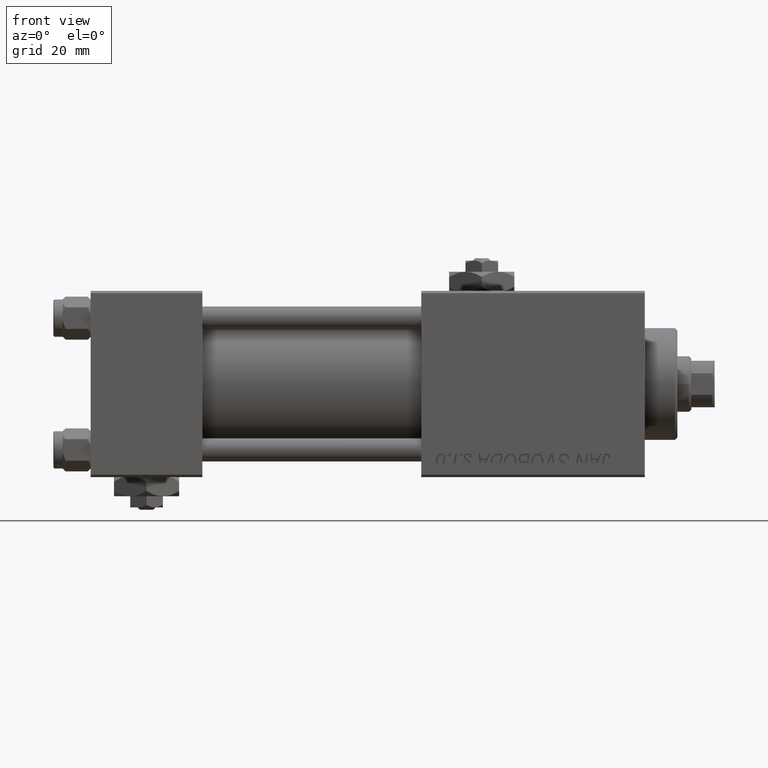
[diagram: clean part render]
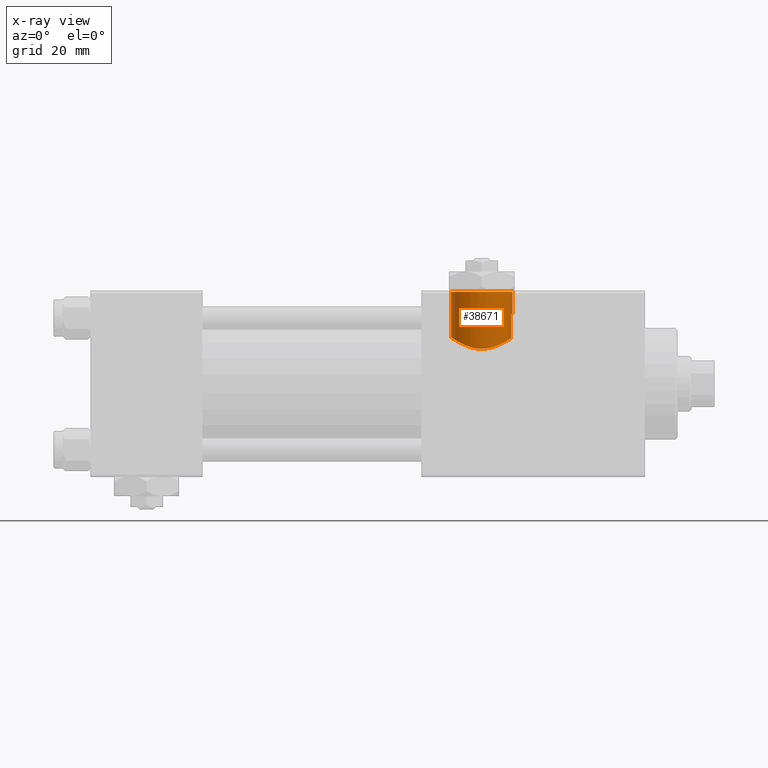
[diagram: x-ray — body ghosted, one internal face saturated and labeled with its STEP entity id]
A machine part, front view, then the same camera in x-ray: the body is ghosted and one INTERNAL B-rep face — a face not visible from any outside direction — is saturated and labeled: STEP entity #38671.
In plain terms, the highlighted cylindrical surface (edge-blend (fillet) strip) has radius 6.58 mm, axis along (0, 0, -1).
Its self-contained STEP definition (entity closure, byte-faithful):
#129 = DIRECTION ( 'NONE',  ( -0.000000000000000000, -0.000000000000000000, 1.000000000000000000 ) ) ;
#402 = CARTESIAN_POINT ( 'NONE',  ( 84.00000000000000000, -1.734723475976806897E-15, 19.80000000000000071 ) ) ;
#1168 = CARTESIAN_POINT ( 'NONE',  ( 86.92434068310684836, -5.907044672534588869, 8.071096920454994716 ) ) ;
#1700 = CARTESIAN_POINT ( 'NONE',  ( 78.16834223545102134, -3.071777053897142729, 9.522948337697433985 ) ) ;
#1962 = CARTESIAN_POINT ( 'NONE',  ( 82.06128195139868353, -6.290973204691355569, 7.773687993804112573 ) ) ;
#2469 = CARTESIAN_POINT ( 'NONE',  ( 82.64228046384747017, -6.441510615516904181, 7.649229527461429257 ) ) ;
#5407 = CARTESIAN_POINT ( 'NONE',  ( 83.84132420776212768, -6.581215419008478840, 7.529131557805247787 ) ) ;
#5665 = CARTESIAN_POINT ( 'NONE',  ( 80.48004077057568395, -5.572564248888139282, 8.306509127488531874 ) ) ;
#6390 = ORIENTED_EDGE ( 'NONE', *, *, #37096, .F. ) ;
#6440 = CARTESIAN_POINT ( 'NONE',  ( 77.45763783829498550, -0.8084208477571691587, 9.975121118623741623 ) ) ;
#7100 = EDGE_CURVE ( 'NONE', #35305, #10651, #36364, .T. ) ;
#8098 = DIRECTION ( 'NONE',  ( 0.000000000000000000, 0.000000000000000000, -1.000000000000000000 ) ) ;
#8379 = VERTEX_POINT ( 'NONE', #17626 ) ;
#8845 = CARTESIAN_POINT ( 'NONE',  ( 89.01171256368644435, -4.281038711601321545, 9.043476487246550732 ) ) ;
#9110 = CARTESIAN_POINT ( 'NONE',  ( 89.68316260257665817, -3.338928794743214468, 9.433056230293079381 ) ) ;
#9363 = EDGE_LOOP ( 'NONE', ( #37093, #47012, #17876, #32877, #34469, #6390 ) ) ;
#9381 = CARTESIAN_POINT ( 'NONE',  ( 85.05563542025694801, -6.507095227759212008, 7.594134426896898660 ) ) ;
#9734 = CARTESIAN_POINT ( 'NONE',  ( 90.58000000000154728, -9.289058821376597120E-16, 42.80000000000000426 ) ) ;
#9836 = VERTEX_POINT ( 'NONE', #47150 ) ;
#9878 = B_SPLINE_CURVE_WITH_KNOTS ( 'NONE', 3,
 ( #45318, #12812, #32897, #9110, #49550, #8845, #25216, #41371, #49024, #21508, #21246, #33688, #1168, #17303, #33430, #29438, #45586, #9381, #25489, #41632, #5407, #37671, #49811, #13603, #2469, #22810, #1962, #26513, #46876, #5665, #42142, #50589, #10676, #38185, #50067, #14633, #50850, #1700, #30481, #34476, #17823, #22034, #33956, #6440, #30217, #18073 ),
 .UNSPECIFIED., .F., .F.,
 ( 4, 2, 2, 2, 2, 2, 2, 2, 2, 2, 2, 2, 2, 2, 2, 2, 2, 2, 2, 2, 2, 2, 4 ),
 ( 0.000000000000000000, 0.001207791230099372441, 0.002415582460198744882, 0.003623373690298115155, 0.004227269305347786631, 0.004831164920397457672, 0.006038956150496800623, 0.006642851765546489880, 0.007246747380596180003, 0.008454538610695601017, 0.009058434225745329305, 0.009662329840795061062, 0.01026622545584479108, 0.01087012107089451937, 0.01207791230099397942, 0.01328570353109343946, 0.01449349476119290124, 0.01509739037624264514, 0.01570128599129239078, 0.01690907722139185429, 0.01751297283644158778, 0.01811686845149132127, 0.01932465968159079173 ),
 .UNSPECIFIED. ) ;
#10651 = VERTEX_POINT ( 'NONE', #42537 ) ;
#10676 = CARTESIAN_POINT ( 'NONE',  ( 79.29730408322323854, -4.618177244596259889, 8.875509752877485781 ) ) ;
#12193 = FACE_OUTER_BOUND ( 'NONE', #9363, .T. ) ;
#12450 = DIRECTION ( 'NONE',  ( -1.000000000000000000, 0.000000000000000000, 0.000000000000000000 ) ) ;
#12812 = CARTESIAN_POINT ( 'NONE',  ( 90.18384735178129574, -2.284382302762963501, 9.743491762341799145 ) ) ;
#13603 = CARTESIAN_POINT ( 'NONE',  ( 82.83871781191031403, -6.479820246555592966, 7.616654439233103702 ) ) ;
#14633 = CARTESIAN_POINT ( 'NONE',  ( 78.57242859662287060, -3.724876030303978069, 9.281895439158068584 ) ) ;
#16896 = EDGE_CURVE ( 'NONE', #8379, #9836, #49320, .T. ) ;
#17303 = CARTESIAN_POINT ( 'NONE',  ( 86.39211994537743067, -6.132805105780794186, 7.899218132206713427 ) ) ;
#17626 = CARTESIAN_POINT ( 'NONE',  ( 90.58000000000154728, -9.289058821376599092E-16, 19.80000000000000071 ) ) ;
#17823 = CARTESIAN_POINT ( 'NONE',  ( 77.72104259078042787, -1.977670684214428043, 9.804446867313098224 ) ) ;
#17876 = ORIENTED_EDGE ( 'NONE', *, *, #21879, .T. ) ;
#18073 = CARTESIAN_POINT ( 'NONE',  ( 77.41999999999846693, 1.225496641077837722E-15, 9.999999999999998224 ) ) ;
#19331 = CARTESIAN_POINT ( 'NONE',  ( 84.00000000000000000, -1.734723475976806897E-15, 42.80000000000000426 ) ) ;
#21246 = CARTESIAN_POINT ( 'NONE',  ( 87.74050804270864035, -5.416766998257490862, 8.406790300727948306 ) ) ;
#21508 = CARTESIAN_POINT ( 'NONE',  ( 87.89699318866286148, -5.305288046703262594, 8.477775428654018341 ) ) ;
#21879 = EDGE_CURVE ( 'NONE', #27092, #10651, #30849, .T. ) ;
#22034 = CARTESIAN_POINT ( 'NONE',  ( 77.61241581301695192, -1.592248641449762747, 9.874366003595781649 ) ) ;
#22640 = DIRECTION ( 'NONE',  ( 0.000000000000000000, 0.000000000000000000, -1.000000000000000000 ) ) ;
#22810 = CARTESIAN_POINT ( 'NONE',  ( 82.25327158685063011, -6.347078162380216604, 7.727766182684421281 ) ) ;
#25216 = CARTESIAN_POINT ( 'NONE',  ( 88.75695250607545006, -4.561896889324866144, 8.903678834413629062 ) ) ;
#25489 = CARTESIAN_POINT ( 'NONE',  ( 84.65744280686338641, -6.559709605006789346, 7.547889352008899877 ) ) ;
#26092 = VECTOR ( 'NONE', #8098, 1000.000000000000000 ) ;
#26513 = CARTESIAN_POINT ( 'NONE',  ( 81.50365122394816808, -6.100731835174567408, 7.925108619061488113 ) ) ;
#27092 = VERTEX_POINT ( 'NONE', #45395 ) ;
#28162 = CARTESIAN_POINT ( 'NONE',  ( 77.41999999999846693, -1.734723475976806897E-15, 42.80000000000000426 ) ) ;
#28294 = DIRECTION ( 'NONE',  ( 0.000000000000000000, 0.000000000000000000, -1.000000000000000000 ) ) ;
#28673 = DIRECTION ( 'NONE',  ( -0.000000000000000000, -0.000000000000000000, -1.000000000000000000 ) ) ;
#29048 = VERTEX_POINT ( 'NONE', #39572 ) ;
#29438 = CARTESIAN_POINT ( 'NONE',  ( 85.83530013697877337, -6.321933289868085559, 7.748495657718812879 ) ) ;
#29445 = VECTOR ( 'NONE', #22640, 1000.000000000000000 ) ;
#30194 = CARTESIAN_POINT ( 'NONE',  ( 90.58000000000156149, -0.3230844264541308797, 14.99999999999999822 ) ) ;
#30217 = CARTESIAN_POINT ( 'NONE',  ( 77.41999999999848114, -0.4081853129699585803, 10.00000000000000711 ) ) ;
#30457 = CARTESIAN_POINT ( 'NONE',  ( 90.55605924908761040, -0.6456608678150235203, 14.98945420583744870 ) ) ;
#30481 = CARTESIAN_POINT ( 'NONE',  ( 77.99714712711040931, -2.723766581249583485, 9.629423614267258458 ) ) ;
#30849 = B_SPLINE_CURVE_WITH_KNOTS ( 'NONE', 3,
 ( #47114, #30194, #30457, #34191, #46853, #47381 ),
 .UNSPECIFIED., .F., .F.,
 ( 4, 2, 4 ),
 ( 0.001923267627926015643, 0.002881828648815649985, 0.003840389669705283893 ),
 .UNSPECIFIED. ) ;
#32139 = DIRECTION ( 'NONE',  ( 1.000000000000000000, 0.000000000000000000, 0.000000000000000000 ) ) ;
#32877 = ORIENTED_EDGE ( 'NONE', *, *, #7100, .F. ) ;
#32897 = CARTESIAN_POINT ( 'NONE',  ( 90.03601729897108896, -2.648259396322893089, 9.649752199410302822 ) ) ;
#33430 = CARTESIAN_POINT ( 'NONE',  ( 86.21002104074251804, -6.200884946022790167, 7.845702732414576275 ) ) ;
#33688 = CARTESIAN_POINT ( 'NONE',  ( 87.26053252520590320, -5.728070196491263921, 8.200680661955367157 ) ) ;
#33956 = CARTESIAN_POINT ( 'NONE',  ( 77.56705469300284506, -1.397686090543303283, 9.903818455115036556 ) ) ;
#34191 = CARTESIAN_POINT ( 'NONE',  ( 90.46247493449395449, -1.278752734038846484, 14.94875937294843737 ) ) ;
#34469 = ORIENTED_EDGE ( 'NONE', *, *, #47565, .T. ) ;
#34476 = CARTESIAN_POINT ( 'NONE',  ( 77.78468472322818172, -2.169203254887546617, 9.763745855050723677 ) ) ;
#35305 = VERTEX_POINT ( 'NONE', #40012 ) ;
#36364 = LINE ( 'NONE', #44534, #48514 ) ;
#37093 = ORIENTED_EDGE ( 'NONE', *, *, #16896, .F. ) ;
#37096 = EDGE_CURVE ( 'NONE', #9836, #29048, #51472, .T. ) ;
#37671 = CARTESIAN_POINT ( 'NONE',  ( 83.43610688730976221, -6.558932760434257325, 7.548550817887899278 ) ) ;
#38185 = CARTESIAN_POINT ( 'NONE',  ( 78.91948560029506154, -4.185857250486422210, 9.083179932574980242 ) ) ;
#38541 = LINE ( 'NONE', #9734, #29445 ) ;
#38671 = ADVANCED_FACE ( 'NONE', ( #12193 ), #43939, .F. ) ;
#39572 = CARTESIAN_POINT ( 'NONE',  ( 77.41999999999846693, 1.225496641077837722E-15, 9.999999999999998224 ) ) ;
#40012 = CARTESIAN_POINT ( 'NONE',  ( 90.30000000000001137, -1.899052395280420136, 9.818024241158690657 ) ) ;
#41371 = CARTESIAN_POINT ( 'NONE',  ( 88.34134544482054707, -4.948221379670047604, 8.691185487698470880 ) ) ;
#41632 = CARTESIAN_POINT ( 'NONE',  ( 84.04743762832036680, -6.582974628388996940, 7.527585999843090292 ) ) ;
#42142 = CARTESIAN_POINT ( 'NONE',  ( 80.16020215073048405, -5.356874842517142632, 8.448716332623810388 ) ) ;
#42537 = CARTESIAN_POINT ( 'NONE',  ( 90.30000000000001137, -1.899052395280420136, 14.87930105885285670 ) ) ;
#43939 = CYLINDRICAL_SURFACE ( 'NONE', #47265, 6.580000000001542837 ) ;
#44258 = AXIS2_PLACEMENT_3D ( 'NONE', #402, #28673, #32139 ) ;
#44534 = CARTESIAN_POINT ( 'NONE',  ( 90.30000000000001137, -1.899052395280420136, 42.80000000000000426 ) ) ;
#45059 = EDGE_CURVE ( 'NONE', #8379, #27092, #38541, .T. ) ;
#45318 = CARTESIAN_POINT ( 'NONE',  ( 90.30000000000001137, -1.899052395280420136, 9.818024241158690657 ) ) ;
#45395 = CARTESIAN_POINT ( 'NONE',  ( 90.58000000000154728, 1.836897619300433381E-15, 15.00000000000000000 ) ) ;
#45586 = CARTESIAN_POINT ( 'NONE',  ( 85.64143006621837628, -6.375121249720390182, 7.704616833470068649 ) ) ;
#46853 = CARTESIAN_POINT ( 'NONE',  ( 90.39284622331669539, -1.591040247564623700, 14.91861279833453757 ) ) ;
#46876 = CARTESIAN_POINT ( 'NONE',  ( 81.15150766959031614, -5.943877247083126925, 8.044991576418468071 ) ) ;
#47012 = ORIENTED_EDGE ( 'NONE', *, *, #45059, .T. ) ;
#47114 = CARTESIAN_POINT ( 'NONE',  ( 90.58000000000154728, 1.836897619300433381E-15, 15.00000000000000000 ) ) ;
#47150 = CARTESIAN_POINT ( 'NONE',  ( 77.41999999999846693, -1.734723475976806897E-15, 19.80000000000000071 ) ) ;
#47265 = AXIS2_PLACEMENT_3D ( 'NONE', #19331, #28294, #12450 ) ;
#47381 = CARTESIAN_POINT ( 'NONE',  ( 90.30000000000001137, -1.899052395280420136, 14.87930105885285670 ) ) ;
#47565 = EDGE_CURVE ( 'NONE', #35305, #29048, #9878, .T. ) ;
#48514 = VECTOR ( 'NONE', #129, 1000.000000000000000 ) ;
#49024 = CARTESIAN_POINT ( 'NONE',  ( 88.19718467613775204, -5.071121963172631197, 8.619888602053425330 ) ) ;
#49320 = CIRCLE ( 'NONE', #44258, 6.580000000001542837 ) ;
#49550 = CARTESIAN_POINT ( 'NONE',  ( 89.47667727346387778, -3.667500690329295931, 9.309199649381490360 ) ) ;
#49811 = CARTESIAN_POINT ( 'NONE',  ( 83.23563096081821300, -6.538530929802691460, 7.566314066596407706 ) ) ;
#50067 = CARTESIAN_POINT ( 'NONE',  ( 78.79875737437667738, -4.034886358906389248, 9.151392050136836431 ) ) ;
#50589 = CARTESIAN_POINT ( 'NONE',  ( 79.57031396582577543, -4.880372653833860319, 8.732632965334568453 ) ) ;
#50850 = CARTESIAN_POINT ( 'NONE',  ( 78.46622740148208663, -3.565203004854784474, 9.344512687240586146 ) ) ;
#51472 = LINE ( 'NONE', #28162, #26092 ) ;